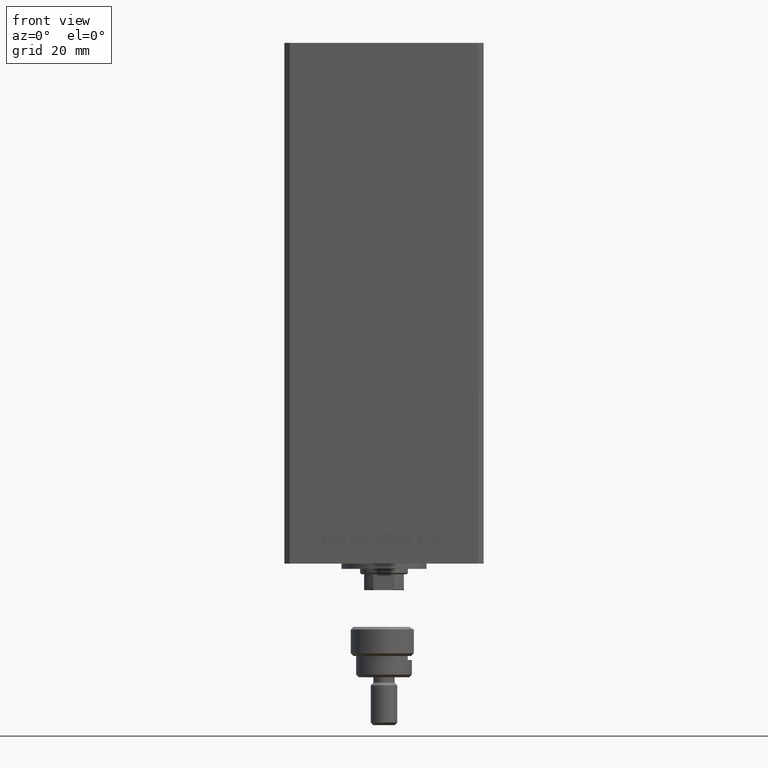
[diagram: clean part render]
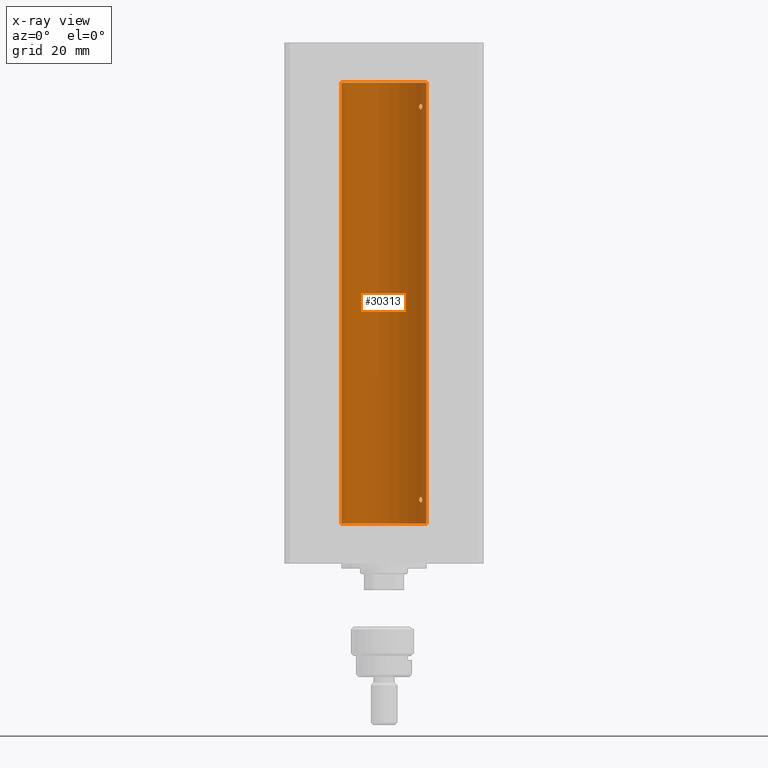
[diagram: x-ray — body ghosted, one internal face saturated and labeled with its STEP entity id]
A machine part, front view, then the same camera in x-ray: the body is ghosted and one INTERNAL B-rep face — a face not visible from any outside direction — is saturated and labeled: STEP entity #30313.
In plain terms, the highlighted cylindrical surface (partial cylindrical patch) has radius 16 mm, axis along (-0, -0, -1).
Its self-contained STEP definition (entity closure, byte-faithful):
#527 = CARTESIAN_POINT ( 'NONE',  ( 14.38749456993829057, 7.000000000000029310, 156.9292911095188288 ) ) ;
#1670 = CARTESIAN_POINT ( 'NONE',  ( 13.22875655532295092, 8.999999999999994671, 157.1426595155012649 ) ) ;
#1900 = CARTESIAN_POINT ( 'NONE',  ( -16.00000000000000000, 0.000000000000000000, 0.000000000000000000 ) ) ;
#3605 = CARTESIAN_POINT ( 'NONE',  ( 13.37714181818050641, 8.778635597591444295, 156.3595547667462995 ) ) ;
#3781 = B_SPLINE_CURVE_WITH_KNOTS ( 'NONE', 3,
 ( #45023, #17464, #33783, #14390, #36625, #17216, #18983, #26641, #18725, #42198, #46278, #15654, #31231, #7483, #30978, #6734, #30470, #27149, #11067, #46527 ),
 .UNSPECIFIED., .F., .F.,
 ( 4, 2, 2, 2, 2, 2, 2, 2, 2, 4 ),
 ( 0.000000000000000000, 0.0004221896201403055413, 0.0008443792402806110826, 0.001266568860420916624, 0.001688758480561222165, 0.002110948100701527490, 0.002533137720841833248, 0.002955327340982138572, 0.003166422151052288633, 0.003377516961122438259 ),
 .UNSPECIFIED. ) ;
#3854 = CARTESIAN_POINT ( 'NONE',  ( 14.31615587311060978, 7.145052533203036127, 156.4626987052745619 ) ) ;
#4587 = VERTEX_POINT ( 'NONE', #46990 ) ;
#4667 = VERTEX_POINT ( 'NONE', #42161 ) ;
#5183 = DIRECTION ( 'NONE',  ( -1.000000000000000000, 0.000000000000000000, 0.000000000000000000 ) ) ;
#5606 = ORIENTED_EDGE ( 'NONE', *, *, #23813, .T. ) ;
#5836 = LINE ( 'NONE', #25238, #19249 ) ;
#6069 = VERTEX_POINT ( 'NONE', #49406 ) ;
#6244 = CARTESIAN_POINT ( 'NONE',  ( 14.12440581436492515, 7.519967855344591001, 157.9168456675479888 ) ) ;
#6734 = CARTESIAN_POINT ( 'NONE',  ( 14.35867515080208356, 7.058999333127636611, 8.654421198538130966 ) ) ;
#6958 = EDGE_LOOP ( 'NONE', ( #22473, #36609 ) ) ;
#7300 = VERTEX_POINT ( 'NONE', #1900 ) ;
#7418 = CARTESIAN_POINT ( 'NONE',  ( 13.77746685470184929, 8.136441676695655545, 156.0017131429554524 ) ) ;
#7483 = CARTESIAN_POINT ( 'NONE',  ( 14.27574973237574696, 7.225997637813494023, 8.353078210746339494 ) ) ;
#7660 = EDGE_CURVE ( 'NONE', #4587, #6069, #12576, .T. ) ;
#7912 = ORIENTED_EDGE ( 'NONE', *, *, #47314, .F. ) ;
#8167 = CARTESIAN_POINT ( 'NONE',  ( 14.36932461189096877, 7.037242368448795915, 156.7207139776694191 ) ) ;
#8424 = CARTESIAN_POINT ( 'NONE',  ( 14.35867515080208712, 7.058999333127631282, 156.6544211985381594 ) ) ;
#8993 = DIRECTION ( 'NONE',  ( -0.000000000000000000, -0.000000000000000000, -1.000000000000000000 ) ) ;
#9545 = EDGE_CURVE ( 'NONE', #16386, #37537, #3781, .T. ) ;
#9566 = CARTESIAN_POINT ( 'NONE',  ( 14.38749456993835807, 6.999999999999900524, 157.1411069770375093 ) ) ;
#9948 = CARTESIAN_POINT ( 'NONE',  ( 13.25022586032984329, 8.968609469449802418, 9.283289638962903823 ) ) ;
#10070 = CARTESIAN_POINT ( 'NONE',  ( 13.55739033881264710, 8.499771822136690247, 157.9029833364132855 ) ) ;
#10575 = CARTESIAN_POINT ( 'NONE',  ( 14.31678893103185679, 7.143775209822727845, 157.5347800480706724 ) ) ;
#10705 = CARTESIAN_POINT ( 'NONE',  ( 14.27601081693604712, 7.225489892961965310, 9.646446674983275571 ) ) ;
#11067 = CARTESIAN_POINT ( 'NONE',  ( 14.38749456993828879, 7.000000000000026645, 8.929291109518763037 ) ) ;
#12255 = VERTEX_POINT ( 'NONE', #30224 ) ;
#12260 = CARTESIAN_POINT ( 'NONE',  ( 13.92009581174527355, 7.889943515799701323, 155.9984609092138044 ) ) ;
#12576 = B_SPLINE_CURVE_WITH_KNOTS ( 'NONE', 3,
 ( #19922, #19164, #15084, #27082, #3605, #46712, #38572, #24008, #7418, #12260, #23252, #30910, #42637, #27845, #3854, #8424, #8167, #16093, #527, #38817 ),
 .UNSPECIFIED., .F., .F.,
 ( 4, 2, 2, 2, 2, 2, 2, 2, 2, 4 ),
 ( 2.818592028051833686E-17, 0.0004221896201403299359, 0.0008443792402806316825, 0.001266568860420933538, 0.001688758480561235176, 0.002110948100701536597, 0.002533137720841838886, 0.002955327340982140307, 0.003166422151052290801, 0.003377516961122441295 ),
 .UNSPECIFIED. ) ;
#12838 = FACE_BOUND ( 'NONE', #6958, .T. ) ;
#13909 = CARTESIAN_POINT ( 'NONE',  ( 13.37722806521492203, 8.778496895713763237, 157.6404922157021815 ) ) ;
#14390 = CARTESIAN_POINT ( 'NONE',  ( 13.32443414199768839, 8.857985377928104143, 8.468605830316136007 ) ) ;
#14538 = CARTESIAN_POINT ( 'NONE',  ( 14.38749456993875953, 6.999999999998769873, 8.999999999999467093 ) ) ;
#15084 = CARTESIAN_POINT ( 'NONE',  ( 13.25010819131476048, 8.968783812673557065, 156.7171986622837210 ) ) ;
#15654 = CARTESIAN_POINT ( 'NONE',  ( 14.11701305531884287, 7.531808851198022126, 8.107366783090686368 ) ) ;
#16093 = CARTESIAN_POINT ( 'NONE',  ( 14.38374727663542707, 7.007716049903077504, 156.8576079294365400 ) ) ;
#16386 = VERTEX_POINT ( 'NONE', #31888 ) ;
#16660 = FACE_OUTER_BOUND ( 'NONE', #33100, .T. ) ;
#17216 = CARTESIAN_POINT ( 'NONE',  ( 13.49787029139620920, 8.591848682074017418, 8.183814587142569152 ) ) ;
#17318 = DIRECTION ( 'NONE',  ( -0.000000000000000000, -0.000000000000000000, -1.000000000000000000 ) ) ;
#17464 = CARTESIAN_POINT ( 'NONE',  ( 13.22875655532296157, 9.000000000000000000, 8.857026260935734641 ) ) ;
#17481 = CARTESIAN_POINT ( 'NONE',  ( 13.22875655532295447, 8.999999999999996447, 156.9999999999999716 ) ) ;
#17984 = CARTESIAN_POINT ( 'NONE',  ( 13.70635209652259334, 8.259251269739747769, 157.9961002086728570 ) ) ;
#18233 = CARTESIAN_POINT ( 'NONE',  ( 14.27601081693604179, 7.225489892961972416, 157.6464466749833093 ) ) ;
#18725 = CARTESIAN_POINT ( 'NONE',  ( 13.77746685470184040, 8.136441676695669756, 8.001713142955473757 ) ) ;
#18983 = CARTESIAN_POINT ( 'NONE',  ( 13.56526576050683452, 8.485384079562178883, 8.116990538131117816 ) ) ;
#19164 = CARTESIAN_POINT ( 'NONE',  ( 13.22875655532295802, 8.999999999999998224, 156.8570262609357258 ) ) ;
#19249 = VECTOR ( 'NONE', #17318, 1000.000000000000000 ) ;
#19357 = B_SPLINE_CURVE_WITH_KNOTS ( 'NONE', 3,
 ( #26147, #9566, #33299, #10575, #18233, #6244, #48873, #17984, #10070, #13909, #44534, #32811, #1670, #17481 ),
 .UNSPECIFIED., .F., .F.,
 ( 4, 2, 2, 2, 2, 2, 4 ),
 ( 0.003377516961122441295, 0.003798778705083836419, 0.004220040449045231977, 0.005062563936968072532, 0.005905087424890913088, 0.006326349168852335100, 0.006747610912813756245 ),
 .UNSPECIFIED. ) ;
#19845 = CIRCLE ( 'NONE', #42644, 16.00000000000000000 ) ;
#19922 = CARTESIAN_POINT ( 'NONE',  ( 13.22875655532295447, 8.999999999999996447, 156.9999999999999716 ) ) ;
#21695 = CARTESIAN_POINT ( 'NONE',  ( 13.22875655532295447, 8.999999999999998224, 8.999999999999994671 ) ) ;
#21938 = ORIENTED_EDGE ( 'NONE', *, *, #48807, .T. ) ;
#22473 = ORIENTED_EDGE ( 'NONE', *, *, #9545, .F. ) ;
#23252 = CARTESIAN_POINT ( 'NONE',  ( 13.98799506618805211, 7.768796316246563194, 156.0189078186198799 ) ) ;
#23813 = EDGE_CURVE ( 'NONE', #4667, #12255, #19845, .T. ) ;
#24008 = CARTESIAN_POINT ( 'NONE',  ( 13.70633586603035781, 8.255576010093792050, 156.0253286105015036 ) ) ;
#24159 = B_SPLINE_CURVE_WITH_KNOTS ( 'NONE', 3,
 ( #14538, #26529, #33426, #33676, #10705, #48999, #26026, #41082, #30363, #30614, #45668, #9948, #25529, #21695 ),
 .UNSPECIFIED., .F., .F.,
 ( 4, 2, 2, 2, 2, 2, 4 ),
 ( 0.003377516961122438259, 0.003798778705083848996, 0.004220040449045259733, 0.005062563936968083808, 0.005905087424890908751, 0.006326349168852319488, 0.006747610912813730225 ),
 .UNSPECIFIED. ) ;
#24725 = DIRECTION ( 'NONE',  ( -0.000000000000000000, 0.000000000000000000, 1.000000000000000000 ) ) ;
#24992 = ORIENTED_EDGE ( 'NONE', *, *, #37239, .F. ) ;
#25238 = CARTESIAN_POINT ( 'NONE',  ( -16.00000000000000000, 0.000000000000000000, 166.0000000000000000 ) ) ;
#25529 = CARTESIAN_POINT ( 'NONE',  ( 13.22875655532295625, 9.000000000000000000, 9.142659515501296852 ) ) ;
#25847 = DIRECTION ( 'NONE',  ( -0.000000000000000000, 0.000000000000000000, 1.000000000000000000 ) ) ;
#26026 = CARTESIAN_POINT ( 'NONE',  ( 13.98853479819183043, 7.771757428685174496, 10.00365939203466681 ) ) ;
#26147 = CARTESIAN_POINT ( 'NONE',  ( 14.38749456993875775, 6.999999999998771649, 156.9999999999994600 ) ) ;
#26529 = CARTESIAN_POINT ( 'NONE',  ( 14.38749456993835807, 6.999999999999894307, 9.141106977037484427 ) ) ;
#26641 = CARTESIAN_POINT ( 'NONE',  ( 13.70633586603034715, 8.255576010093811590, 8.025328610501505366 ) ) ;
#26846 = DIRECTION ( 'NONE',  ( -0.000000000000000000, -0.000000000000000000, -1.000000000000000000 ) ) ;
#27082 = CARTESIAN_POINT ( 'NONE',  ( 13.32443414199769194, 8.857985377928093484, 156.4686058303161644 ) ) ;
#27149 = CARTESIAN_POINT ( 'NONE',  ( 14.38374727663542707, 7.007716049903074840, 8.857607929436484895 ) ) ;
#27562 = CARTESIAN_POINT ( 'NONE',  ( 16.00000000000000000, 1.959434878635765131E-15, 0.000000000000000000 ) ) ;
#27845 = CARTESIAN_POINT ( 'NONE',  ( 14.27574973237574874, 7.225997637813491359, 156.3530782107463040 ) ) ;
#28417 = CYLINDRICAL_SURFACE ( 'NONE', #47713, 16.00000000000000000 ) ;
#30224 = CARTESIAN_POINT ( 'NONE',  ( -16.00000000000000000, 0.000000000000000000, 166.0000000000000000 ) ) ;
#30313 = ADVANCED_FACE ( 'NONE', ( #16660, #47801, #12838 ), #28417, .F. ) ;
#30363 = CARTESIAN_POINT ( 'NONE',  ( 13.55739033881265065, 8.499771822136686694, 9.902983336413296200 ) ) ;
#30470 = CARTESIAN_POINT ( 'NONE',  ( 14.36932461189096877, 7.037242368448794139, 8.720713977669424466 ) ) ;
#30614 = CARTESIAN_POINT ( 'NONE',  ( 13.37722806521492025, 8.778496895713756132, 9.640492215702138878 ) ) ;
#30910 = CARTESIAN_POINT ( 'NONE',  ( 14.11701305531884465, 7.531808851198014132, 156.1073667830907539 ) ) ;
#30978 = CARTESIAN_POINT ( 'NONE',  ( 14.31615587311060445, 7.145052533203043232, 8.462698705274526390 ) ) ;
#31231 = CARTESIAN_POINT ( 'NONE',  ( 14.17516445690067428, 7.421373518623910037, 8.173695665549439937 ) ) ;
#31888 = CARTESIAN_POINT ( 'NONE',  ( 13.22875655532295447, 8.999999999999998224, 8.999999999999994671 ) ) ;
#32811 = CARTESIAN_POINT ( 'NONE',  ( 13.25022586032983618, 8.968609469449805971, 157.2832896389629127 ) ) ;
#33055 = CIRCLE ( 'NONE', #46924, 16.00000000000000000 ) ;
#33100 = EDGE_LOOP ( 'NONE', ( #24992, #5606, #21938, #7912 ) ) ;
#33160 = VERTEX_POINT ( 'NONE', #27562 ) ;
#33248 = CARTESIAN_POINT ( 'NONE',  ( 0.000000000000000000, 0.000000000000000000, 0.000000000000000000 ) ) ;
#33299 = CARTESIAN_POINT ( 'NONE',  ( 14.37260515874679179, 7.030802976542521954, 157.2824317985811149 ) ) ;
#33426 = CARTESIAN_POINT ( 'NONE',  ( 14.37260515874679534, 7.030802976542521954, 9.282431798581109561 ) ) ;
#33676 = CARTESIAN_POINT ( 'NONE',  ( 14.31678893103186390, 7.143775209822729622, 9.534780048070684799 ) ) ;
#33783 = CARTESIAN_POINT ( 'NONE',  ( 13.25010819131475159, 8.968783812673564171, 8.717198662283735189 ) ) ;
#34502 = LINE ( 'NONE', #45477, #38066 ) ;
#36227 = ORIENTED_EDGE ( 'NONE', *, *, #7660, .F. ) ;
#36609 = ORIENTED_EDGE ( 'NONE', *, *, #38222, .F. ) ;
#36625 = CARTESIAN_POINT ( 'NONE',  ( 13.37714181818049575, 8.778635597591465611, 8.359554766746297716 ) ) ;
#37239 = EDGE_CURVE ( 'NONE', #4667, #33160, #34502, .T. ) ;
#37537 = VERTEX_POINT ( 'NONE', #42348 ) ;
#37967 = EDGE_CURVE ( 'NONE', #6069, #4587, #19357, .T. ) ;
#38066 = VECTOR ( 'NONE', #26846, 1000.000000000000000 ) ;
#38222 = EDGE_CURVE ( 'NONE', #37537, #16386, #24159, .T. ) ;
#38572 = CARTESIAN_POINT ( 'NONE',  ( 13.56526576050684518, 8.485384079562161119, 156.1169905381310912 ) ) ;
#38817 = CARTESIAN_POINT ( 'NONE',  ( 14.38749456993875775, 6.999999999998771649, 156.9999999999994600 ) ) ;
#40773 = CARTESIAN_POINT ( 'NONE',  ( 0.000000000000000000, 0.000000000000000000, 166.0000000000000000 ) ) ;
#41082 = CARTESIAN_POINT ( 'NONE',  ( 13.70635209652260222, 8.259251269739738888, 9.996100208672867637 ) ) ;
#41355 = ORIENTED_EDGE ( 'NONE', *, *, #37967, .F. ) ;
#42161 = CARTESIAN_POINT ( 'NONE',  ( 16.00000000000000000, 1.959434878635765131E-15, 166.0000000000000000 ) ) ;
#42198 = CARTESIAN_POINT ( 'NONE',  ( 13.92009581174526822, 7.889943515799717311, 7.998460909213807035 ) ) ;
#42348 = CARTESIAN_POINT ( 'NONE',  ( 14.38749456993875953, 6.999999999998769873, 8.999999999999467093 ) ) ;
#42637 = CARTESIAN_POINT ( 'NONE',  ( 14.17516445690067250, 7.421373518623910037, 156.1736956655494453 ) ) ;
#42644 = AXIS2_PLACEMENT_3D ( 'NONE', #40773, #24725, #44353 ) ;
#43963 = CARTESIAN_POINT ( 'NONE',  ( 0.000000000000000000, 0.000000000000000000, 166.0000000000000000 ) ) ;
#44353 = DIRECTION ( 'NONE',  ( 1.000000000000000000, 0.000000000000000000, 0.000000000000000000 ) ) ;
#44447 = EDGE_LOOP ( 'NONE', ( #36227, #41355 ) ) ;
#44534 = CARTESIAN_POINT ( 'NONE',  ( 13.32447566991143617, 8.857922402414489582, 157.5314381199037541 ) ) ;
#45023 = CARTESIAN_POINT ( 'NONE',  ( 13.22875655532295447, 8.999999999999998224, 8.999999999999994671 ) ) ;
#45477 = CARTESIAN_POINT ( 'NONE',  ( 16.00000000000000000, 1.959434878635765131E-15, 166.0000000000000000 ) ) ;
#45668 = CARTESIAN_POINT ( 'NONE',  ( 13.32447566991143439, 8.857922402414480700, 9.531438119903825168 ) ) ;
#46278 = CARTESIAN_POINT ( 'NONE',  ( 13.98799506618804855, 7.768796316246572964, 8.018907818619863903 ) ) ;
#46527 = CARTESIAN_POINT ( 'NONE',  ( 14.38749456993875953, 6.999999999998769873, 8.999999999999467093 ) ) ;
#46712 = CARTESIAN_POINT ( 'NONE',  ( 13.49787029139622696, 8.591848682073997878, 156.1838145871425638 ) ) ;
#46924 = AXIS2_PLACEMENT_3D ( 'NONE', #33248, #25847, #48823 ) ;
#46990 = CARTESIAN_POINT ( 'NONE',  ( 13.22875655532295447, 8.999999999999996447, 156.9999999999999716 ) ) ;
#47314 = EDGE_CURVE ( 'NONE', #33160, #7300, #33055, .T. ) ;
#47713 = AXIS2_PLACEMENT_3D ( 'NONE', #43963, #8993, #5183 ) ;
#47801 = FACE_BOUND ( 'NONE', #44447, .T. ) ;
#48807 = EDGE_CURVE ( 'NONE', #12255, #7300, #5836, .T. ) ;
#48823 = DIRECTION ( 'NONE',  ( 1.000000000000000000, 0.000000000000000000, 0.000000000000000000 ) ) ;
#48873 = CARTESIAN_POINT ( 'NONE',  ( 13.98853479819182866, 7.771757428685186042, 158.0036593920346775 ) ) ;
#48999 = CARTESIAN_POINT ( 'NONE',  ( 14.12440581436493225, 7.519967855344579455, 9.916845667547992349 ) ) ;
#49406 = CARTESIAN_POINT ( 'NONE',  ( 14.38749456993875775, 6.999999999998771649, 156.9999999999994600 ) ) ;